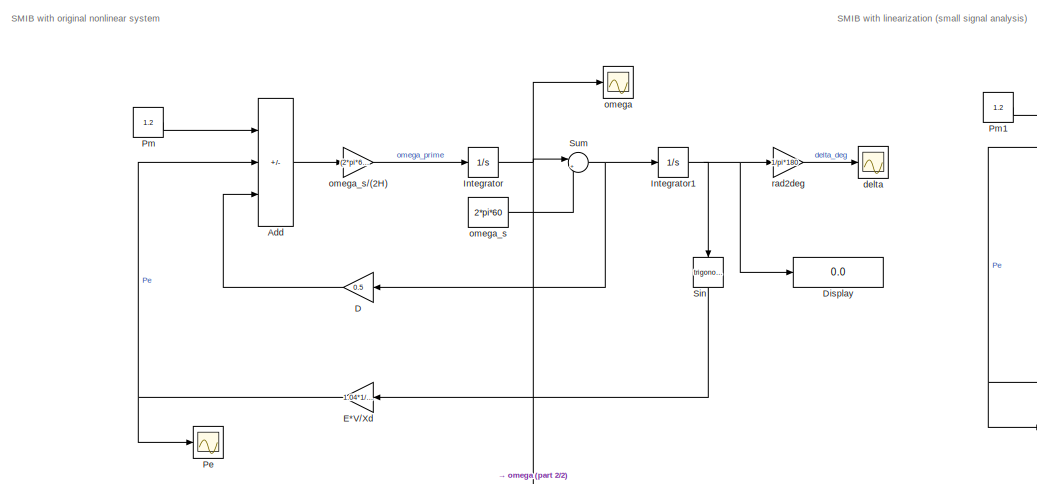
[diagram: root canvas - part 1/2, left side, full height]
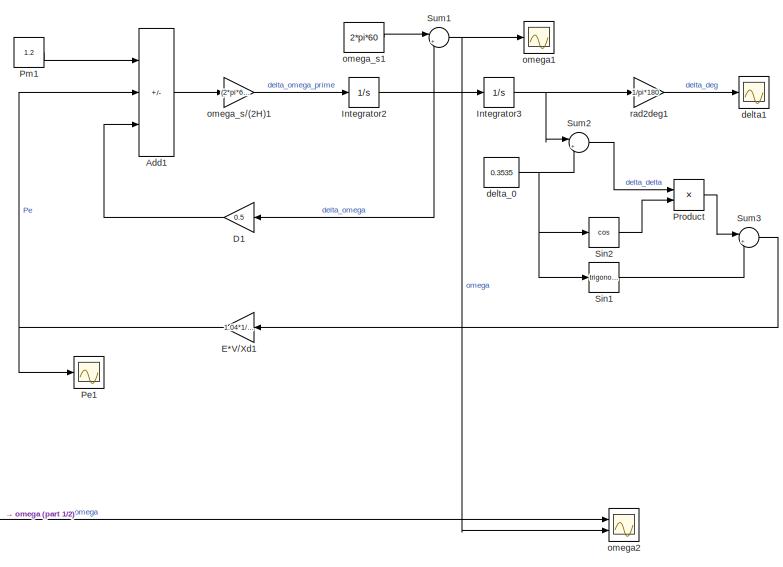
[diagram: root canvas - part 2/2, right side, full height]
MODEL slx_c28c24bf12d2
KIND model
CONFIG AbsTol = auto
CONFIG EnableMultiTasking = off
CONFIG FixedStep = auto
CONFIG MaxStep = 0.1
CONFIG MinStep = auto
CONFIG RelTol = 1e-3
CONFIG SampleTimeConstraint = Unconstrained
CONFIG SolverName = VariableStepAuto
CONFIG StartTime = 0.0
CONFIG StopTime = 10
BLOCK [Sum] Add
  IconShape = rectangular
  Inputs = +--
  Ports = [3, 1]
BLOCK [Sum] Add1
  IconShape = rectangular
  Inputs = +--
  Ports = [3, 1]
BLOCK [Gain] D
  Gain = 0.5
BLOCK [Gain] D1
  Gain = 0.5
BLOCK [Display] Display
  Decimation = 1
  Ports = [1]
BLOCK [Gain] E*V//Xd
  Gain = 1.04*1/0.3
BLOCK [Gain] E*V//Xd1
  Gain = 1.04*1/0.3
BLOCK [Integrator] Integrator
  Ports = [1, 1]
BLOCK [Integrator] Integrator1
  LimitOutput = on
  LowerSaturationLimit = 0
  Ports = [1, 1]
  UpperSaturationLimit = 2*pi
BLOCK [Integrator] Integrator2
  Ports = [1, 1]
BLOCK [Integrator] Integrator3
  LimitOutput = on
  LowerSaturationLimit = 0
  Ports = [1, 1]
  UpperSaturationLimit = 2*pi
BLOCK [Scope] Pe
  Floating = off
  NumInputPorts = 1
  Ports = [1]
  ScopeSpecificationString = Simulink.scopes.TimeScopeBlockCfg('CurrentConfiguration', extmgr.ConfigurationSet(extmgr.Configuration('Core','General UI',true),extmgr.Configuration('Core','Source UI',true),extmgr.Configuration('Sources','WiredSimulink',true,'DataLoggingVariableName','ScopeData2'),extmgr.Configuration('Visuals','Time Domain',true,'SerializedDisplays',{struct('MinYLimReal','-2.38511','MaxYLimReal','3.36126','YLab...<+1434ch>
BLOCK [Scope] Pe1
  Floating = off
  NumInputPorts = 1
  Ports = [1]
  ScopeSpecificationString = Simulink.scopes.TimeScopeBlockCfg('CurrentConfiguration', extmgr.ConfigurationSet(extmgr.Configuration('Core','General UI',true),extmgr.Configuration('Core','Source UI',true),extmgr.Configuration('Sources','WiredSimulink',true,'DataLoggingVariableName','ScopeData3'),extmgr.Configuration('Visuals','Time Domain',true,'SerializedDisplays',{struct('MinYLimReal','-0.233','MaxYLimReal','2.097','YLabelRe...<+1422ch>
BLOCK [Constant] Pm
  Value = 1.2
BLOCK [Constant] Pm1
  Value = 1.2
BLOCK [Product] Product
  Ports = [2, 1]
BLOCK [Trigonometry] Sin
  NameLocation = left
  Ports = [1, 1]
BLOCK [Trigonometry] Sin1
  Ports = [1, 1]
BLOCK [Trigonometry] Sin2
  Operator = cos
  Ports = [1, 1]
BLOCK [Sum] Sum
  Inputs = |+-
  Ports = [2, 1]
BLOCK [Sum] Sum1
  Inputs = |++
  Ports = [2, 1]
BLOCK [Sum] Sum2
  Inputs = |+-
  Ports = [2, 1]
BLOCK [Sum] Sum3
  Inputs = |++
  Ports = [2, 1]
BLOCK [Scope] delta
  Floating = off
  NumInputPorts = 1
  Ports = [1]
  ScopeSpecificationString = Simulink.scopes.TimeScopeBlockCfg('CurrentConfiguration', extmgr.ConfigurationSet(extmgr.Configuration('Core','General UI',true),extmgr.Configuration('Core','Source UI',true),extmgr.Configuration('Sources','WiredSimulink',true,'DataLoggingVariableName','ScopeData1'),extmgr.Configuration('Visuals','Time Domain',true,'SerializedDisplays',{struct('MinYLimReal','-2.7662','MaxYLimReal','24.89578','YLab...<+1424ch>
BLOCK [Scope] delta1
  Floating = off
  NumInputPorts = 1
  Ports = [1]
  ScopeSpecificationString = Simulink.scopes.TimeScopeBlockCfg('CurrentConfiguration', extmgr.ConfigurationSet(extmgr.Configuration('Core','General UI',true),extmgr.Configuration('Core','Source UI',true),extmgr.Configuration('Sources','WiredSimulink',true,'DataLoggingVariableName','ScopeData4'),extmgr.Configuration('Visuals','Time Domain',true,'SerializedDisplays',{struct('MinYLimReal','-2.76086','MaxYLimReal','24.84772','YLa...<+1426ch>
BLOCK [Constant] delta_0
  Value = 0.3535
BLOCK [Scope] omega
  Floating = off
  NumInputPorts = 1
  Ports = [1]
  ScopeSpecificationString = Simulink.scopes.TimeScopeBlockCfg('CurrentConfiguration', extmgr.ConfigurationSet(extmgr.Configuration('Core','General UI',true),extmgr.Configuration('Core','Source UI',true),extmgr.Configuration('Sources','WiredSimulink',true),extmgr.Configuration('Visuals','Time Domain',true,'SerializedDisplays',{struct('MinYLimReal','-47.31968','MaxYLimReal','425.87714','YLabelReal','','MinYLimMag','0.00000','M...<+1410ch>
BLOCK [Scope] omega1
  Floating = off
  NumInputPorts = 1
  Ports = [1]
  ScopeSpecificationString = Simulink.scopes.TimeScopeBlockCfg('CurrentConfiguration', extmgr.ConfigurationSet(extmgr.Configuration('Core','General UI',true),extmgr.Configuration('Core','Source UI',true),extmgr.Configuration('Sources','WiredSimulink',true,'DataLoggingVariableName','ScopeData5'),extmgr.Configuration('Visuals','Time Domain',true,'SerializedDisplays',{struct('MinYLimReal','-47.31968','MaxYLimReal','425.87714','Y...<+1449ch>
BLOCK [Scope] omega2
  Floating = off
  NumInputPorts = 2
  Ports = [2]
  ScopeSpecificationString = Simulink.scopes.TimeScopeBlockCfg('CurrentConfiguration', extmgr.ConfigurationSet(extmgr.Configuration('Core','General UI',true),extmgr.Configuration('Core','Source UI',true),extmgr.Configuration('Sources','WiredSimulink',true,'DataLoggingVariableName','ScopeData6'),extmgr.Configuration('Visuals','Time Domain',true,'SerializedDisplays',{struct('MinYLimReal','-47.30096','MaxYLimReal','425.70867','Y...<+1457ch>
BLOCK [Constant] omega_s
  Value = 2*pi*60
BLOCK [Gain] omega_s//(2H)
  Gain = (2*pi*60)/(2*10)
BLOCK [Gain] omega_s//(2H)1
  Gain = (2*pi*60)/(2*10)
BLOCK [Constant] omega_s1
  Value = 2*pi*60
BLOCK [Gain] rad2deg
  Gain = 1/pi*180
BLOCK [Gain] rad2deg1
  Gain = 1/pi*180
ANNOTATION (root): SMIB with linearization (small signal analysis)
ANNOTATION (root): SMIB with original nonlinear system
LINE Add1:1 -> omega_s//(2H)1:1
LINE Add:1 -> omega_s//(2H):1
LINE D1:1 -> Add1:3
LINE D:1 -> Add:3
NET E*V//Xd1:1 -> Add1:2, Pe1:1
NET E*V//Xd:1 -> Add:2, Pe:1
NET Integrator1:1 -> Display:1, Sin:1, rad2deg:1
NET Integrator2:1 -> D1:1, Integrator3:1, Sum1:2
NET Integrator3:1 -> Sum2:1, rad2deg1:1
NET Integrator:1 -> Sum:1, omega2:1, omega:1
LINE Pm1:1 -> Add1:1
LINE Pm:1 -> Add:1
LINE Product:1 -> Sum3:1
LINE Sin1:1 -> Sum3:2
LINE Sin2:1 -> Product:2
LINE Sin:1 -> E*V//Xd:1
NET Sum1:1 -> omega1:1, omega2:2
LINE Sum2:1 -> Product:1
LINE Sum3:1 -> E*V//Xd1:1
NET Sum:1 -> D:1, Integrator1:1
NET delta_0:1 -> Sin1:1, Sin2:1, Sum2:2
LINE omega_s//(2H)1:1 -> Integrator2:1
LINE omega_s//(2H):1 -> Integrator:1
LINE omega_s1:1 -> Sum1:1
LINE omega_s:1 -> Sum:2
LINE rad2deg1:1 -> delta1:1
LINE rad2deg:1 -> delta:1
note: NET lines group one-source signal fan-out (src -> all destinations, sorted); 1:1 wires keep LINE
